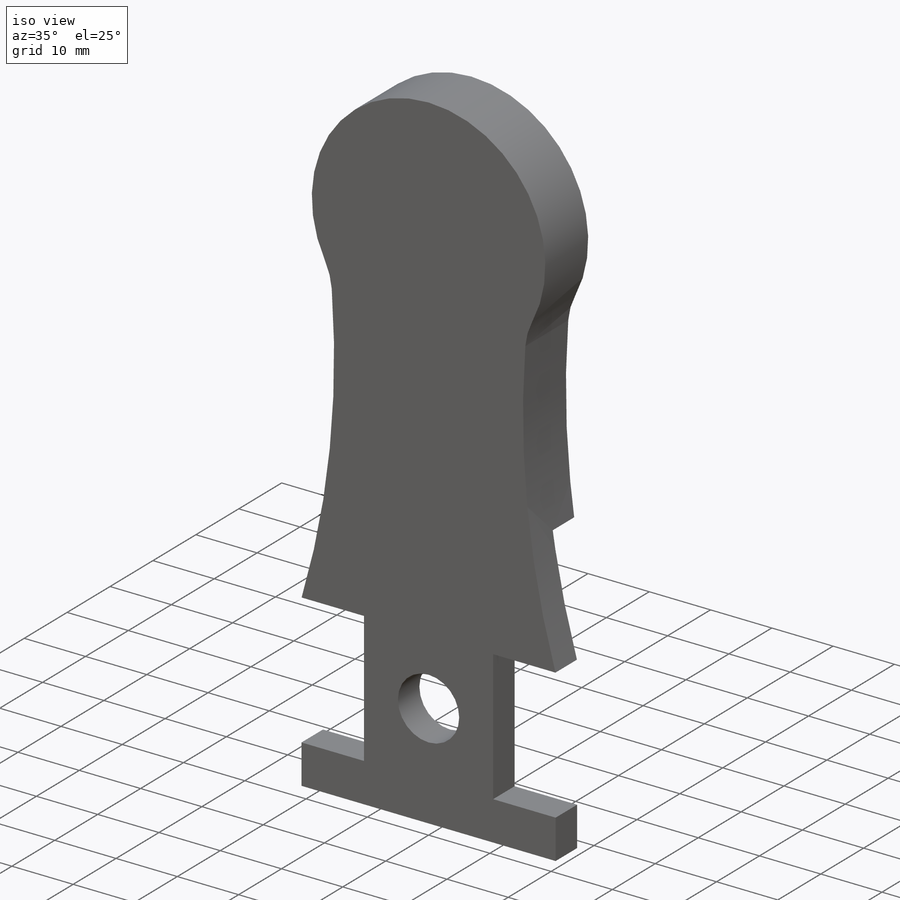
[diagram: iso view]
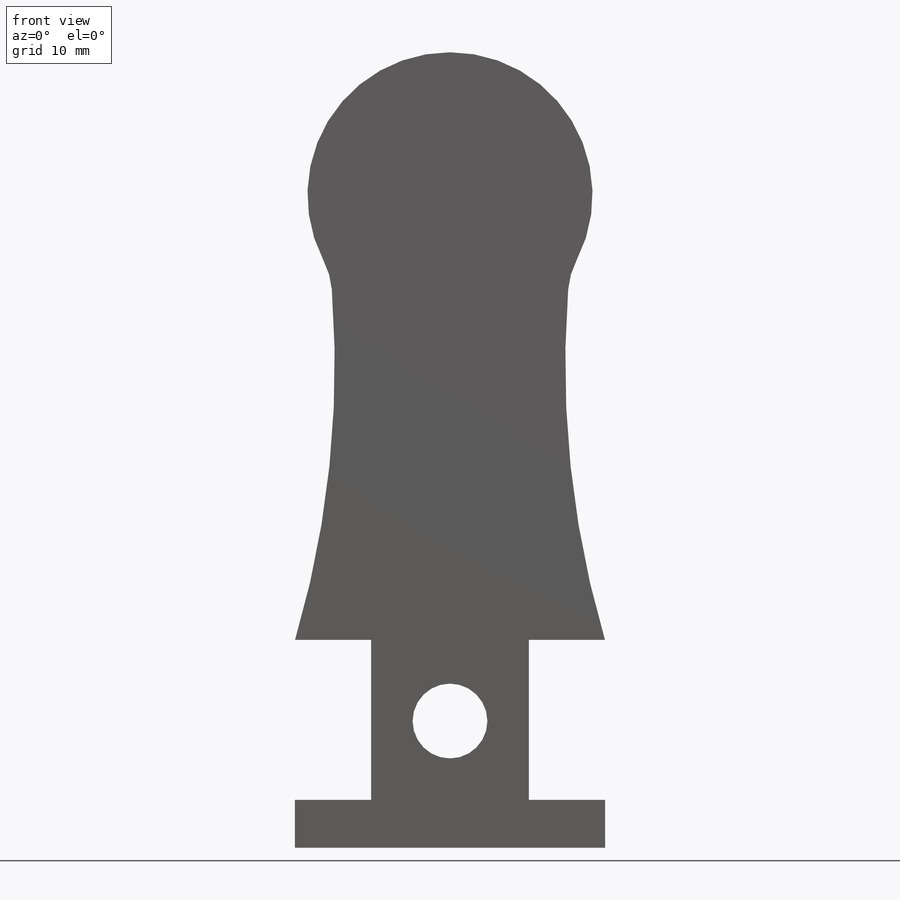
[diagram: front view]
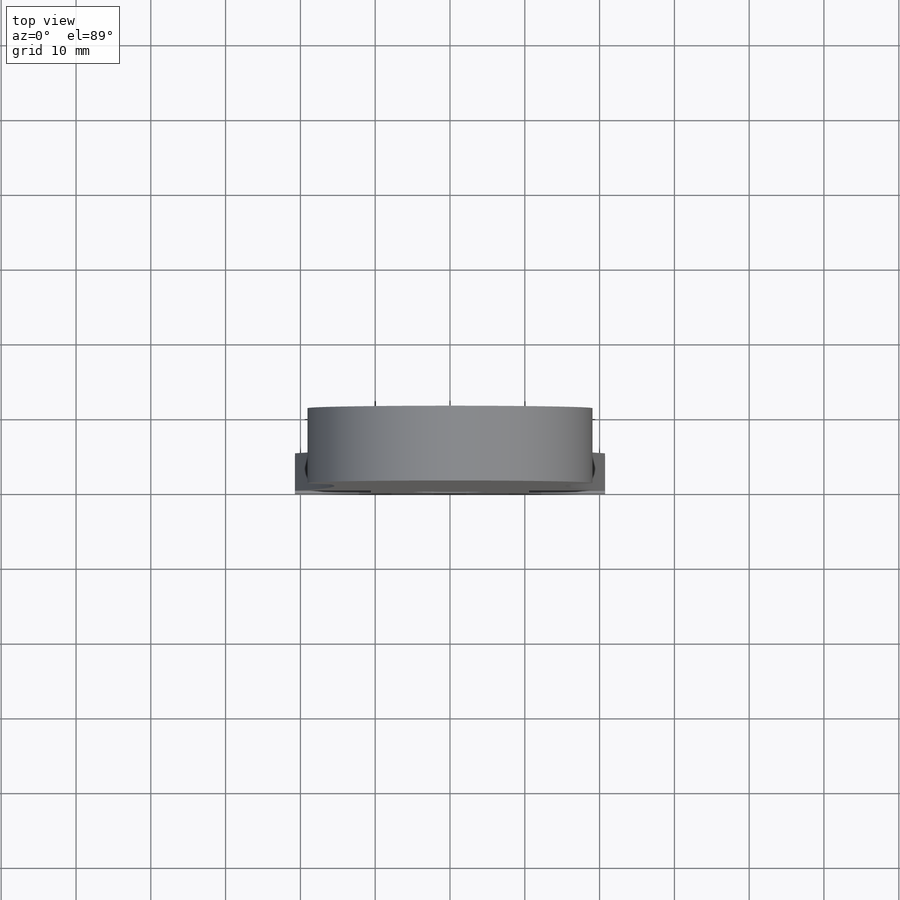
[diagram: top view]
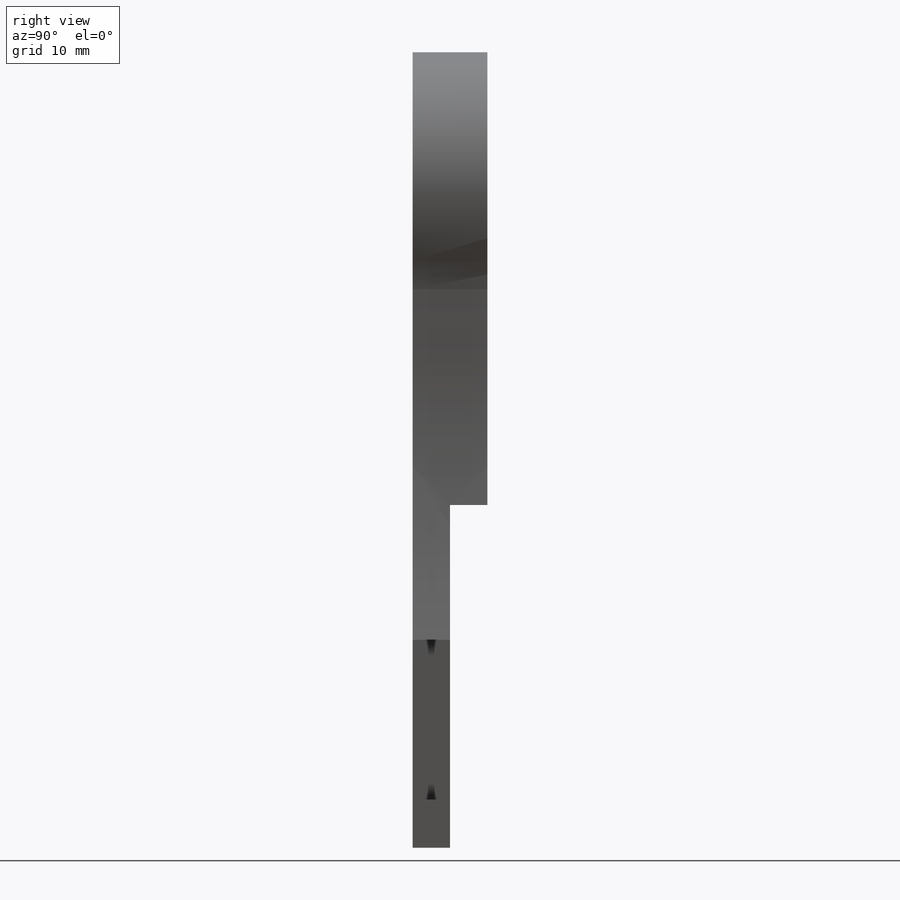
[diagram: right view]
SOLIDWORKS PART (.sldprt)
format: sldprt  version: not decoded by parser v0  size: 299,008 bytes
history: native  units: mm
features: sketch x5, cut_extrude x3, fillet x2, material x1, extrude x1 (+13 scaffold rows collapsed)
feature tree (25):
  scaffold x13  (default folders/planes/origin — collapsed)
  material  "Material <not specified>"
  sketch  "Sketch1"  dims[c1.D1=10.0mm c1.D2=150.0mm c1.D3=135.0deg c2.D2=50.0mm c2.D3=135.0deg c3.D3=70.0mm c3.D4=30.0mm c3.D5=10.0mm c3.D6=5.0mm c3.D7=~6.247213mm c4.D5=~203.58633mm c4.D2=75.0mm c4.D3=50.0mm c4.D4=~76.337468deg c5.D3=45.0deg c6.D3=60.0mm c6.D4=75.0mm c7.D4=5.0deg c7.D5=75.0mm c8.D5=5.0deg c8.D6=~41.48241mm c8.D7=~21.38871mm c8.D8=~6.39955mm c8.D9=~21.08579mm c8.D10=~6.39955mm]
  extrude  "Body"  Depth=10mm
  sketch  "Sketch2"  dims[D1=10.0mm]
  cut_extrude  "Attachment Hole"  [1 undecoded]
  sketch  "Sketch17"  dims[c1.D1=~10.450302mm c1.D2=~20.853194mm c1.D3=~42.482414mm c1.D4=~10.448308mm c1.D5=~10.448308mm c1.D6=~20.853194mm c2.D1=~53.07379mm]
  sketch  "Sketch34"
  cut_extrude  "Cut-Extrude28"  [1 undecoded]
  sketch  "Sketch35"
  cut_extrude  "Cut-Extrude30"  Depth=5mm
  fillet  "Fillet1"  Radius=10mm
  fillet  "Fillet2"  Radius=10mm
decode coverage: 7 of 11 modeling features carry decoded parameters
note: ~ marks probable driven/reference dimensions
note: 2 parameter values undecoded
note: suppression state not decoded; provenance and decode notes live in map.json
